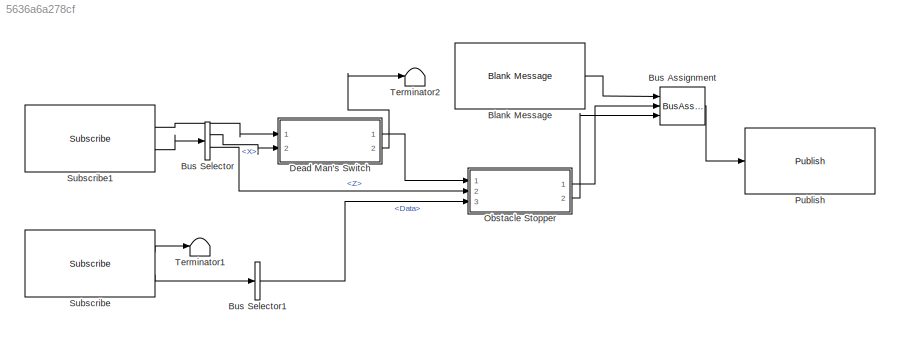
MODEL slx_5636a6a278cf
KIND model
CONFIG AbsTol = auto
CONFIG FixedStep = 0.02
CONFIG MaxStep = auto
CONFIG MinStep = auto
CONFIG RelTol = 1e-3
CONFIG SampleTimeConstraint = Unconstrained
CONFIG Solver = FixedStepAuto
CONFIG SolverMode = Auto
CONFIG SolverName = FixedStepAuto
CONFIG StartTime = 0.0
CONFIG StopTime = inf
BLOCK [Reference] Blank Message  REF=robotlib/Blank Message
  Ports = [0, 1]
  SourceBlock = robotlib/Blank Message
  SourceLibraryInfo = This block requires Robotics System Toolbox
  SourceType = ROS Blank Message
BLOCK [BusAssignment] Bus Assignment
  AssignedSignals = Linear.X,Angular.Z
  Ports = [3, 1]
BLOCK [BusSelector] Bus Selector
  OutputSignals = Linear.X,Angular.Z
  Ports = [1, 2]
BLOCK [BusSelector] Bus Selector1
  OutputSignals = Data
  Ports = [1, 1]
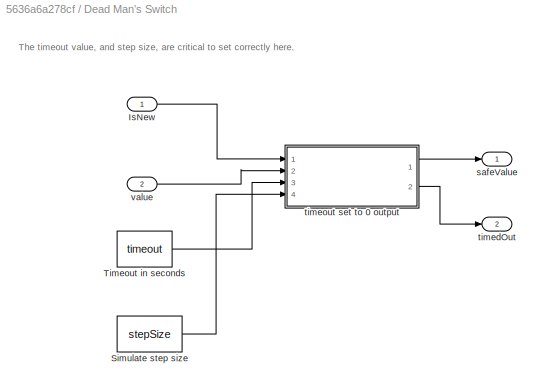
BLOCK [SubSystem] Dead Man's Switch
  Ports = [2, 2]
  RequestExecContextInheritance = off
  TreatAsAtomicUnit = on
  Variant = off
BLOCK [Inport] Dead Man's Switch/IsNew
  IconDisplay = Port number
BLOCK [Constant] Dead Man's Switch/Simulate step size
  Value = stepSize
BLOCK [Constant] Dead Man's Switch/Timeout in seconds
  Value = timeout
BLOCK [Outport] Dead Man's Switch/safeValue
  IconDisplay = Port number
  InitialOutput = [0]
BLOCK [Outport] Dead Man's Switch/timedOut
  IconDisplay = Port number
  InitialOutput = [0]
  Port = 2
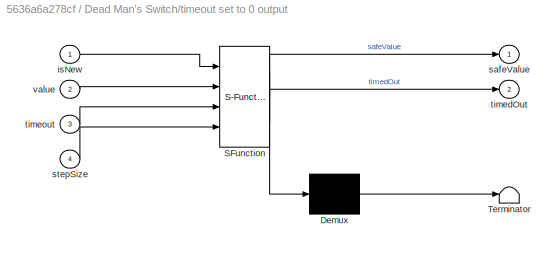
BLOCK [SubSystem] Dead Man's Switch/timeout set to 0 output
  ErrorFcn = Stateflow.Translate.translate
  PermitHierarchicalResolution = ExplicitOnly
  Ports = [4, 2]
  RequestExecContextInheritance = off
  SFBlockType = MATLAB Function
  TreatAsAtomicUnit = on
  Variant = off
BLOCK [Demux] Dead Man's Switch/timeout set to 0 output/ Demux 
  Outputs = 1
  Ports = [1, 1]
BLOCK [S-Function] Dead Man's Switch/timeout set to 0 output/ SFunction 
  EnableBusSupport = on
  FunctionName = sf_sfun
  PortCounts = [4 3]
  Ports = [4, 3]
  SFunctionDeploymentMode = off
  Tag = Stateflow S-Function obstacleStopper 2
BLOCK [Terminator] Dead Man's Switch/timeout set to 0 output/ Terminator 
BLOCK [Inport] Dead Man's Switch/timeout set to 0 output/isNew
  IconDisplay = Port number
BLOCK [Outport] Dead Man's Switch/timeout set to 0 output/safeValue
  IconDisplay = Port number
BLOCK [Inport] Dead Man's Switch/timeout set to 0 output/stepSize
  IconDisplay = Port number
  Port = 4
BLOCK [Outport] Dead Man's Switch/timeout set to 0 output/timedOut
  IconDisplay = Port number
  Port = 2
BLOCK [Inport] Dead Man's Switch/timeout set to 0 output/timeout
  IconDisplay = Port number
  Port = 3
BLOCK [Inport] Dead Man's Switch/timeout set to 0 output/value
  IconDisplay = Port number
  Port = 2
BLOCK [Inport] Dead Man's Switch/value
  IconDisplay = Port number
  Port = 2
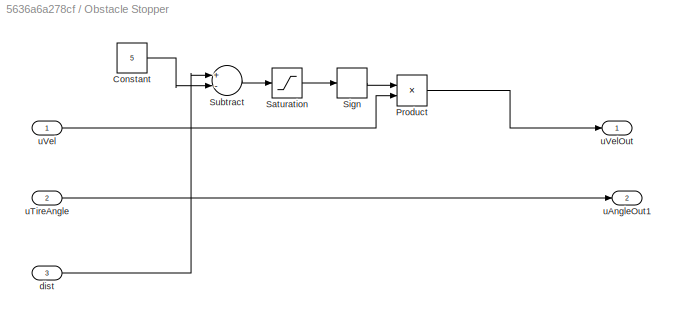
BLOCK [SubSystem] Obstacle Stopper
  Ports = [3, 2]
  RequestExecContextInheritance = off
  Variant = off
BLOCK [Constant] Obstacle Stopper/Constant
  Value = 5
BLOCK [Product] Obstacle Stopper/Product
  InputSameDT = off
  OutDataTypeStr = Inherit: Inherit via internal rule
  Ports = [2, 1]
  RndMeth = Floor
  SaturateOnIntegerOverflow = off
BLOCK [Saturate] Obstacle Stopper/Saturation
  InputPortMap = u0
  LowerLimit = 0
  Ports = [1, 1]
  UpperLimit = 1
BLOCK [Signum] Obstacle Stopper/Sign
BLOCK [Sum] Obstacle Stopper/Subtract
  InputSameDT = off
  Inputs = +-
  OutDataTypeStr = Inherit: Inherit via internal rule
  Ports = [2, 1]
  SaturateOnIntegerOverflow = off
BLOCK [Inport] Obstacle Stopper/dist
  IconDisplay = Port number
  Port = 3
BLOCK [Outport] Obstacle Stopper/uAngleOut1
  IconDisplay = Port number
  Port = 2
BLOCK [Inport] Obstacle Stopper/uTireAngle
  IconDisplay = Port number
  Port = 2
BLOCK [Inport] Obstacle Stopper/uVel
  IconDisplay = Port number
BLOCK [Outport] Obstacle Stopper/uVelOut
  IconDisplay = Port number
BLOCK [Reference] Publish  REF=robotlib/Publish
  Ports = [1]
  SourceBlock = robotlib/Publish
  SourceLibraryInfo = This block requires Robotics System Toolbox
  SourceType = ROS Publish
BLOCK [Reference] Subscribe  REF=robotlib/Subscribe
  Ports = [0, 2]
  SourceBlock = robotlib/Subscribe
  SourceLibraryInfo = This block requires Robotics System Toolbox
  SourceType = ROS Subscribe
BLOCK [Reference] Subscribe1  REF=robotlib/Subscribe
  Ports = [0, 2]
  SourceBlock = robotlib/Subscribe
  SourceLibraryInfo = This block requires Robotics System Toolbox
  SourceType = ROS Subscribe
BLOCK [Terminator] Terminator1
BLOCK [Terminator] Terminator2
ANNOTATION Dead Man's Switch: The timeout value, and step size, are critical to set correctly here.
LINE Blank Message:1 -> Bus Assignment:1
LINE Bus Assignment:1 -> Publish:1
LINE Bus Selector1:1 -> Obstacle Stopper:3
LINE Bus Selector:1 -> Dead Man's Switch:2
LINE Bus Selector:2 -> Obstacle Stopper:2
LINE Dead Man's Switch/IsNew:1 -> Dead Man's Switch/timeout set to 0 output:1
LINE Dead Man's Switch/Simulate step size:1 -> Dead Man's Switch/timeout set to 0 output:4
LINE Dead Man's Switch/Timeout in seconds:1 -> Dead Man's Switch/timeout set to 0 output:3
LINE Dead Man's Switch/timeout set to 0 output:1 -> Dead Man's Switch/safeValue:1
LINE Dead Man's Switch/timeout set to 0 output:2 -> Dead Man's Switch/timedOut:1
LINE Dead Man's Switch/value:1 -> Dead Man's Switch/timeout set to 0 output:2
LINE Dead Man's Switch:1 -> Obstacle Stopper:1
LINE Dead Man's Switch:2 -> Terminator2:1
LINE Obstacle Stopper/Constant:1 -> Obstacle Stopper/Subtract:2
LINE Obstacle Stopper/Product:1 -> Obstacle Stopper/uVelOut:1
LINE Obstacle Stopper/Saturation:1 -> Obstacle Stopper/Sign:1
LINE Obstacle Stopper/Sign:1 -> Obstacle Stopper/Product:1
LINE Obstacle Stopper/Subtract:1 -> Obstacle Stopper/Saturation:1
LINE Obstacle Stopper/dist:1 -> Obstacle Stopper/Subtract:1
LINE Obstacle Stopper/uTireAngle:1 -> Obstacle Stopper/uAngleOut1:1
LINE Obstacle Stopper/uVel:1 -> Obstacle Stopper/Product:2
LINE Obstacle Stopper:1 -> Bus Assignment:2
LINE Obstacle Stopper:2 -> Bus Assignment:3
LINE Subscribe1:1 -> Dead Man's Switch:1
LINE Subscribe1:2 -> Bus Selector:1
LINE Subscribe:1 -> Terminator1:1
LINE Subscribe:2 -> Bus Selector1:1
CHART Dead Man's Switch/timeout set to 0 output states=1 transitions=1
  STATE_LABEL 'eML_blk_kernel()'
  STATE_LABEL 'SCRIPT:\nfunction [safeValue,timedOut] = fcn(isNew,value,timeout,stepSize)\n%#codegen\npersistent sinceLastMsg\ntimedOut=true;\nif isempty(sinceLastMsg)\n    sinceLastMsg=(timeout/stepSize)+1;\nend\n\nsafeValue=0;\n% if no new message\n% after timeout, we output 0\nif( isNew == true )\n    sinceLastMsg = 0;\nelse\n    sinceLastMsg = sinceLastMsg+1;\nend\n\n% Note: we require step size as an input here, and depend o...<+195ch>'
